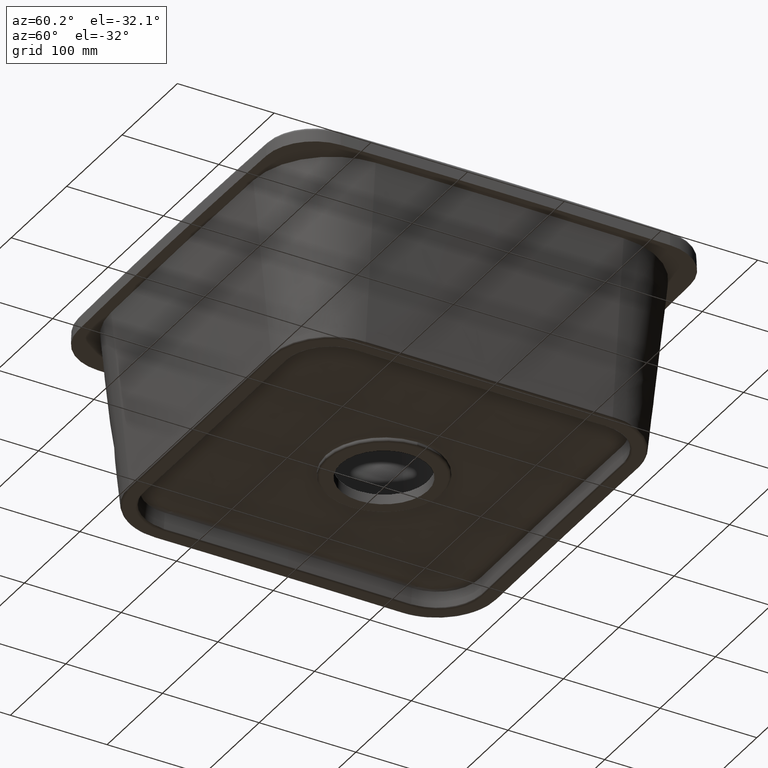
[diagram: clean part render]
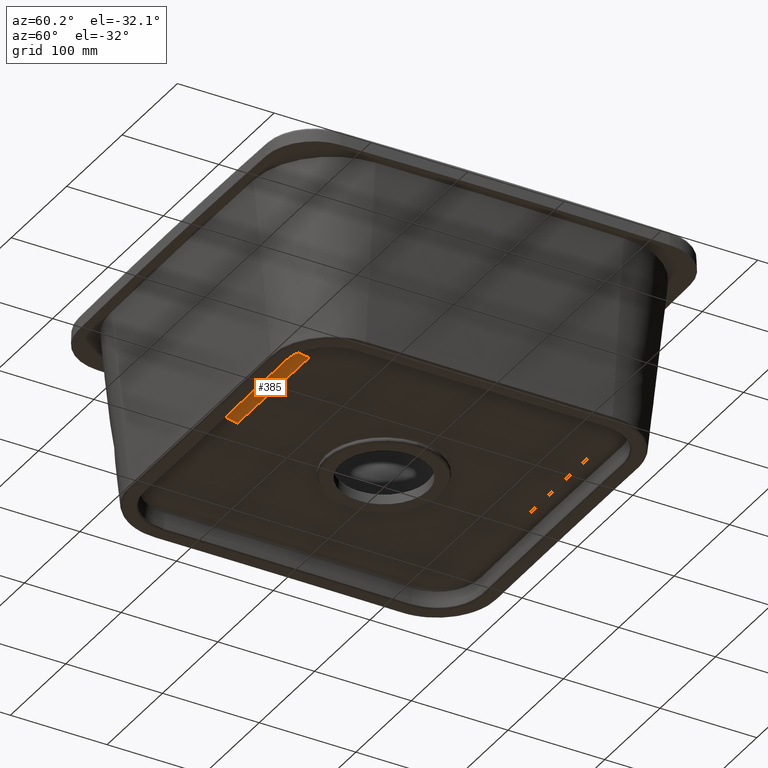
[diagram: same view with one face highlighted and labeled with its STEP entity id]
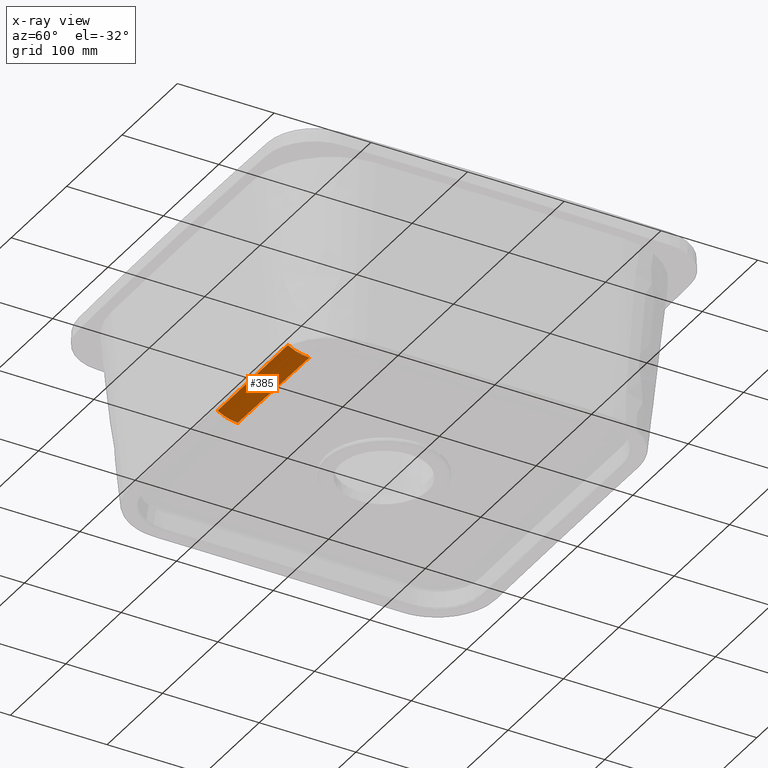
[diagram: x-ray of the same camera — body ghosted, the highlighted face saturated]
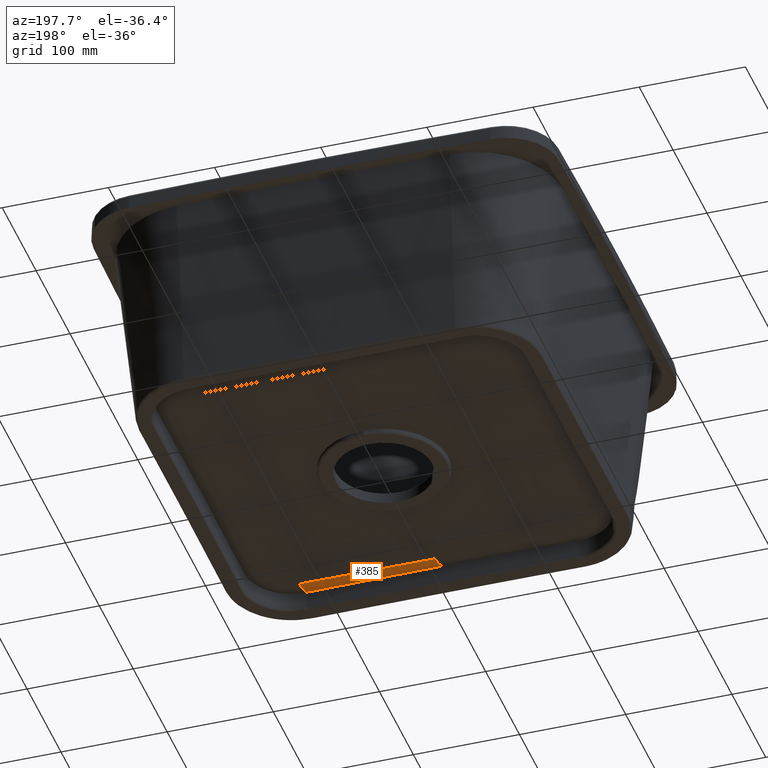
[diagram: same view with one face highlighted and labeled with its STEP entity id]
A machine part, auxiliary view. The second image highlights one B-rep face of the part: STEP entity #385.
The next image is the same camera in x-ray: the body ghosted, the highlighted face saturated — about 0% of this face is hidden behind the body in this view.
A second angle (auxiliary view) of the same face is appended — the face is thin or edge-on in the first view.
In plain terms, the highlighted face is a freeform B-spline surface patch.
Its self-contained STEP definition (entity closure, byte-faithful):
#385=ADVANCED_FACE('',(#663),#587,.T.);
#587=B_SPLINE_SURFACE_WITH_KNOTS('',3,3,((#6813,#6814,#6815,#6816,#6817,
#6818,#6819,#6820,#6821,#6822,#6823,#6824,#6825,#6826,#6827,#6828,#6829,
#6830,#6831,#6832,#6833,#6834,#6835,#6836,#6837),(#6838,#6839,#6840,#6841,
#6842,#6843,#6844,#6845,#6846,#6847,#6848,#6849,#6850,#6851,#6852,#6853,
#6854,#6855,#6856,#6857,#6858,#6859,#6860,#6861,#6862),(#6863,#6864,#6865,
#6866,#6867,#6868,#6869,#6870,#6871,#6872,#6873,#6874,#6875,#6876,#6877,
#6878,#6879,#6880,#6881,#6882,#6883,#6884,#6885,#6886,#6887),(#6888,#6889,
#6890,#6891,#6892,#6893,#6894,#6895,#6896,#6897,#6898,#6899,#6900,#6901,
#6902,#6903,#6904,#6905,#6906,#6907,#6908,#6909,#6910,#6911,#6912),(#6913,
#6914,#6915,#6916,#6917,#6918,#6919,#6920,#6921,#6922,#6923,#6924,#6925,
#6926,#6927,#6928,#6929,#6930,#6931,#6932,#6933,#6934,#6935,#6936,#6937),
(#6938,#6939,#6940,#6941,#6942,#6943,#6944,#6945,#6946,#6947,#6948,#6949,
#6950,#6951,#6952,#6953,#6954,#6955,#6956,#6957,#6958,#6959,#6960,#6961,
#6962),(#6963,#6964,#6965,#6966,#6967,#6968,#6969,#6970,#6971,#6972,#6973,
#6974,#6975,#6976,#6977,#6978,#6979,#6980,#6981,#6982,#6983,#6984,#6985,
#6986,#6987)),.UNSPECIFIED.,.F.,.F.,.F.,(4,3,4),(4,3,3,3,3,3,3,3,4),(0.,
0.5,1.),(0.,0.25,0.5,0.75,0.875,0.9375,0.96875,0.984375,1.),
 .UNSPECIFIED.);
#663=FACE_OUTER_BOUND('',#863,.T.);
#863=EDGE_LOOP('',(#1107,#1108,#1109,#1110,#1111));
#1107=ORIENTED_EDGE('',*,*,#2265,.F.);
#1108=ORIENTED_EDGE('',*,*,#2228,.T.);
#1109=ORIENTED_EDGE('',*,*,#2266,.F.);
#1110=ORIENTED_EDGE('',*,*,#2262,.T.);
#1111=ORIENTED_EDGE('',*,*,#2267,.F.);
#1969=VERTEX_POINT('',#3518);
#1972=VERTEX_POINT('',#3537);
#1997=VERTEX_POINT('',#6400);
#1998=VERTEX_POINT('',#6401);
#1999=VERTEX_POINT('',#6800);
#2228=EDGE_CURVE('',#1969,#1972,#2684,.T.);
#2262=EDGE_CURVE('',#1997,#1998,#2718,.T.);
#2265=EDGE_CURVE('',#1969,#1999,#2721,.T.);
#2266=EDGE_CURVE('',#1997,#1972,#2722,.T.);
#2267=EDGE_CURVE('',#1999,#1998,#2723,.T.);
#2684=B_SPLINE_CURVE_WITH_KNOTS('',3,(#3538,#3539,#3540,#3541),
 .UNSPECIFIED.,.F.,.F.,(4,4),(0.,1.),.UNSPECIFIED.);
#2718=B_SPLINE_CURVE_WITH_KNOTS('',3,(#6394,#6395,#6396,#6397,#6398,#6399),
 .UNSPECIFIED.,.F.,.F.,(4,2,4),(0.,0.5,1.),.UNSPECIFIED.);
#2721=B_SPLINE_CURVE_WITH_KNOTS('',3,(#6783,#6784,#6785,#6786,#6787,#6788,
#6789,#6790,#6791,#6792,#6793,#6794,#6795,#6796,#6797,#6798,#6799),
 .UNSPECIFIED.,.F.,.F.,(4,1,1,1,1,1,1,1,1,1,1,1,1,1,4),(0.,0.124999735793183,
0.187499624926237,0.249999495467291,0.374999188426632,0.499999515627666,
0.562499692375702,0.624999883787122,0.750000211356061,0.875000036920342,
0.937499966207674,0.968749969362104,0.984374981309452,0.992187489668067,
1.),.UNSPECIFIED.);
#2722=B_SPLINE_CURVE_WITH_KNOTS('',3,(#6801,#6802,#6803,#6804,#6805,#6806,
#6807,#6808),.UNSPECIFIED.,.F.,.F.,(4,2,2,4),(0.,0.25,0.5,1.),
 .UNSPECIFIED.);
#2723=B_SPLINE_CURVE_WITH_KNOTS('',3,(#6809,#6810,#6811,#6812),
 .UNSPECIFIED.,.F.,.F.,(4,4),(0.,1.),.UNSPECIFIED.);
#3518=CARTESIAN_POINT('',(3.51410890887579E-12,-172.181683173093,-2.948320013719));
#3537=CARTESIAN_POINT('',(-1.26217744835362E-26,-151.347275727747,-9.50770573471138));
#3538=CARTESIAN_POINT('',(8.58997182554927E-5,-172.181683173093,-2.94832001371975));
#3539=CARTESIAN_POINT('',(5.48332320971472E-5,-165.588697132053,-6.92239311932986));
#3540=CARTESIAN_POINT('',(1.33017617340895E-7,-158.230852352114,-9.0592210068874));
#3541=CARTESIAN_POINT('',(5.92873500410007E-10,-151.347275727747,-9.50770573471138));
#6394=CARTESIAN_POINT('',(127.840346838199,-150.48247812152,-9.53946677384508));
#6395=CARTESIAN_POINT('',(127.824387262593,-154.101442474745,-9.50921636342956));
#6396=CARTESIAN_POINT('',(127.810847625014,-157.880609122432,-9.00550492614753));
#6397=CARTESIAN_POINT('',(127.791583902436,-165.390519101728,-6.89723939566189));
#6398=CARTESIAN_POINT('',(127.785907467725,-169.116323882227,-5.29095508106187));
#6399=CARTESIAN_POINT('',(127.784150592309,-172.603691677709,-3.1678547916441));
#6400=CARTESIAN_POINT('',(127.840346838199,-150.482477022057,-9.53946677384514));
#6401=CARTESIAN_POINT('',(127.784163661064,-172.603691551223,-3.16785287330329));
#6783=CARTESIAN_POINT('',(8.5963599320307E-5,-172.181683173093,-2.94832001371938));
#6784=CARTESIAN_POINT('',(5.32352291777929,-172.182495415009,-2.94518963214221));
#6785=CARTESIAN_POINT('',(13.3086792534589,-172.18371377802,-2.94049405924463));
#6786=CARTESIAN_POINT('',(23.955533516113,-172.192273650997,-2.92037755945526));
#6787=CARTESIAN_POINT('',(34.6023829056648,-172.204868312448,-2.90276092307116));
#6788=CARTESIAN_POINT('',(47.9109974829944,-172.230179606328,-2.89646031823095));
#6789=CARTESIAN_POINT('',(61.2195198276852,-172.271329574305,-2.9424739634533));
#6790=CARTESIAN_POINT('',(71.8661954354625,-172.312941912933,-3.00255459003592));
#6791=CARTESIAN_POINT('',(82.5128196468725,-172.359262687509,-3.0678765946508));
#6792=CARTESIAN_POINT('',(95.8211112452336,-172.424018160363,-3.14050821774379));
#6793=CARTESIAN_POINT('',(109.129536717854,-172.49476920374,-3.17114278087235));
#6794=CARTESIAN_POINT('',(118.445410718071,-172.547776716356,-3.17366471439157));
#6795=CARTESIAN_POINT('',(123.103343957177,-172.575298386741,-3.17161607350973));
#6796=CARTESIAN_POINT('',(125.432310639378,-172.589332233662,-3.16990856872695));
#6797=CARTESIAN_POINT('',(126.763148893431,-172.59743092027,-3.16880105178944));
#6798=CARTESIAN_POINT('',(127.428567890326,-172.601512384869,-3.16816188807049));
#6799=CARTESIAN_POINT('',(127.761277430792,-172.603553117426,-3.16784230617064));
#6800=CARTESIAN_POINT('',(127.761278794802,-172.603553125999,-3.16784230663001));
#6801=CARTESIAN_POINT('',(127.840346838199,-150.48247812152,-9.53946677384508));
#6802=CARTESIAN_POINT('',(117.145194530397,-150.5639794336,-9.53882777496722));
#6803=CARTESIAN_POINT('',(106.533119263018,-150.600740517778,-9.53864526681426));
#6804=CARTESIAN_POINT('',(85.2264260280871,-150.876948799833,-9.53169530429758));
#6805=CARTESIAN_POINT('',(74.5737931422902,-151.083191663746,-9.52326829313834));
#6806=CARTESIAN_POINT('',(42.6141632141493,-151.505985311301,-9.49915193072025));
#6807=CARTESIAN_POINT('',(21.3068325294983,-151.347274497122,-9.50770581489014));
#6808=CARTESIAN_POINT('',(5.92876336115533E-10,-151.347275727747,-9.50770573471138));
#6809=CARTESIAN_POINT('',(127.76127970418,-172.603553131714,-3.16784230693626));
#6810=CARTESIAN_POINT('',(127.768903624587,-172.603601218878,-3.16784646850554));
#6811=CARTESIAN_POINT('',(127.776527253996,-172.603647400798,-3.16785063007482));
#6812=CARTESIAN_POINT('',(127.78415059231,-172.603691677709,-3.1678547916441));
#6813=CARTESIAN_POINT('',(8.97155417211056E-5,-173.013530193725,-2.43506262702022));
#6814=CARTESIAN_POINT('',(10.6687222744401,-173.01347103375,-2.43502582220219));
#6815=CARTESIAN_POINT('',(21.3321407643944,-173.032545343108,-2.39966627359423));
#6816=CARTESIAN_POINT('',(31.9656241331393,-173.039109213434,-2.39108703580777));
#6817=CARTESIAN_POINT('',(42.5991075018841,-173.04567308376,-2.38250779802132));
#6818=CARTESIAN_POINT('',(53.1987232925424,-173.029515178704,-2.42121443479202));
#6819=CARTESIAN_POINT('',(63.8226747613487,-172.978539874759,-2.52985519399385));
#6820=CARTESIAN_POINT('',(74.4466262301549,-172.927564570814,-2.63849595319567));
#6821=CARTESIAN_POINT('',(85.1072325915507,-172.852432766086,-2.79538428815797));
#6822=CARTESIAN_POINT('',(95.7849671563088,-172.805333057636,-2.89921441262504));
#6823=CARTESIAN_POINT('',(101.123834438688,-172.78178320341,-2.95112947485858));
#6824=CARTESIAN_POINT('',(106.464246744959,-172.764343635931,-2.99166230691372));
#6825=CARTESIAN_POINT('',(111.802474590753,-172.752432797883,-3.02212415924955));
#6826=CARTESIAN_POINT('',(114.471588513649,-172.746477378858,-3.03735508541746));
#6827=CARTESIAN_POINT('',(117.139370757589,-172.741823747533,-3.05021545395434));
#6828=CARTESIAN_POINT('',(119.806340955295,-172.738099101338,-3.0614516307717));
#6829=CARTESIAN_POINT('',(121.139826054148,-172.73623677824,-3.06706971918039));
#6830=CARTESIAN_POINT('',(122.473078235394,-172.734599544981,-3.07229063092381));
#6831=CARTESIAN_POINT('',(123.806001292885,-172.733120749994,-3.07721571488417));
#6832=CARTESIAN_POINT('',(124.47246282163,-172.7323813525,-3.07967825686435));
#6833=CARTESIAN_POINT('',(125.138758984188,-172.731693001534,-3.08206314477625));
#6834=CARTESIAN_POINT('',(125.805073493385,-172.731046244346,-3.08439029764825));
#6835=CARTESIAN_POINT('',(126.471388002581,-172.730399487159,-3.08671745052025));
#6836=CARTESIAN_POINT('',(127.169312165708,-172.730593372011,-3.08765436703005));
#6837=CARTESIAN_POINT('',(127.784088973151,-172.729134343645,-3.09120436453924));
#6838=CARTESIAN_POINT('',(7.45634164642187E-5,-169.613342164391,-4.58200582911422));
#6839=CARTESIAN_POINT('',(10.6691308700814,-169.613283514786,-4.58197816153749));
#6840=CARTESIAN_POINT('',(21.3327859360463,-169.636867847515,-4.54675625671045));
#6841=CARTESIAN_POINT('',(31.9661528753996,-169.64410653333,-4.53831924806025));
#6842=CARTESIAN_POINT('',(42.599519814753,-169.651345219144,-4.52988223941006));
#6843=CARTESIAN_POINT('',(53.199042087417,-169.629350429231,-4.56866722915306));
#6844=CARTESIAN_POINT('',(63.8226068900403,-169.562682043202,-4.67726007524362));
#6845=CARTESIAN_POINT('',(74.4461716926635,-169.496013657173,-4.78585292133419));
#6846=CARTESIAN_POINT('',(85.1068482984486,-169.398063594109,-4.94264875067626));
#6847=CARTESIAN_POINT('',(95.7851522867906,-169.33498452681,-5.04657395887249));
#6848=CARTESIAN_POINT('',(101.124304280962,-169.30344499316,-5.0985365629706));
#6849=CARTESIAN_POINT('',(106.464889410192,-169.279499643204,-5.13915375448139));
#6850=CARTESIAN_POINT('',(111.803275328329,-169.262428180966,-5.16973628228545));
#6851=CARTESIAN_POINT('',(114.472468287398,-169.253892449846,-5.18502754618747));
#6852=CARTESIAN_POINT('',(117.140368056428,-169.246973717586,-5.19795693503243));
#6853=CARTESIAN_POINT('',(119.807424646216,-169.241197404325,-5.209269292459));
#6854=CARTESIAN_POINT('',(121.14095294111,-169.238309247694,-5.21492547117229));
#6855=CARTESIAN_POINT('',(122.474258381446,-169.235698070517,-5.2201862122284));
#6856=CARTESIAN_POINT('',(123.807222106224,-169.233281687409,-5.2251519156847));
#6857=CARTESIAN_POINT('',(124.473703968613,-169.232073495855,-5.22763476741284));
#6858=CARTESIAN_POINT('',(125.140020930157,-169.230926891186,-5.23004062241083));
#6859=CARTESIAN_POINT('',(125.80635455622,-169.229829656447,-5.23238937158292));
#6860=CARTESIAN_POINT('',(126.472688182282,-169.228732421709,-5.234738120755));
#6861=CARTESIAN_POINT('',(127.170043175156,-169.228681275133,-5.23573417320648));
#6862=CARTESIAN_POINT('',(127.785765426697,-169.226584520661,-5.23926811042872));
#6863=CARTESIAN_POINT('',(5.22822060796975E-5,-165.985289943605,-6.25592514347928));
#6864=CARTESIAN_POINT('',(10.6682705798025,-165.985235915011,-6.25590750805446));
#6865=CARTESIAN_POINT('',(21.3313250795341,-166.014098115101,-6.22317333163835));
#6866=CARTESIAN_POINT('',(31.9661025353058,-166.022188348947,-6.21534446961138));
#6867=CARTESIAN_POINT('',(42.6008799910775,-166.030278582792,-6.20751560758442));
#6868=CARTESIAN_POINT('',(53.2043716645523,-166.001641232084,-6.24361801051184));
#6869=CARTESIAN_POINT('',(63.8298705512419,-165.916830374334,-6.34447716213987));
#6870=CARTESIAN_POINT('',(74.4553694379314,-165.832019516583,-6.44533631376791));
#6871=CARTESIAN_POINT('',(85.1155438094736,-165.707490986256,-6.59077655388976));
#6872=CARTESIAN_POINT('',(95.7924208296867,-165.625811820292,-6.68703945215546));
#6873=CARTESIAN_POINT('',(101.130859339793,-165.58497223731,-6.7351709012883));
#6874=CARTESIAN_POINT('',(106.470537418505,-165.553474040802,-6.77276115917558));
#6875=CARTESIAN_POINT('',(111.808172366218,-165.530453985671,-6.80105104764384));
#6876=CARTESIAN_POINT('',(114.476989840074,-165.518943958105,-6.81519599187797));
#6877=CARTESIAN_POINT('',(117.144639579781,-165.509426826058,-6.82715154866869));
#6878=CARTESIAN_POINT('',(119.811485846843,-165.50130785744,-6.83760894744305));
#6879=CARTESIAN_POINT('',(121.144908980374,-165.49724837313,-6.84283764683024));
#6880=CARTESIAN_POINT('',(122.478133599735,-165.493528124643,-6.8476998768396));
#6881=CARTESIAN_POINT('',(123.811032302105,-165.490047174177,-6.85228808194395));
#6882=CARTESIAN_POINT('',(124.47748165329,-165.488306698944,-6.85458218449612));
#6883=CARTESIAN_POINT('',(125.143778680961,-165.486640260377,-6.85680520187775));
#6884=CARTESIAN_POINT('',(125.810089987733,-165.485032319895,-6.8589755339674));
#6885=CARTESIAN_POINT('',(126.476401294505,-165.483424379414,-6.86114586605704));
#6886=CARTESIAN_POINT('',(127.170561050944,-165.483101294441,-6.86208202354614));
#6887=CARTESIAN_POINT('',(127.791399153342,-165.480280985596,-6.8653364557576));
#6888=CARTESIAN_POINT('',(3.35242907530995E-5,-162.314721732483,-7.42850699569342));
#6889=CARTESIAN_POINT('',(10.6657378427421,-162.314677005399,-7.42849669302719));
#6890=CARTESIAN_POINT('',(21.3271241377858,-162.348376703509,-7.40117099895119));
#6891=CARTESIAN_POINT('',(31.9652071491116,-162.357284142626,-7.39462529828735));
#6892=CARTESIAN_POINT('',(42.6032901604375,-162.366191581742,-7.3880795976235));
#6893=CARTESIAN_POINT('',(53.2157312741288,-162.331545606135,-7.41832525965484));
#6894=CARTESIAN_POINT('',(63.8461199512392,-162.230260047728,-7.50226128952428));
#6895=CARTESIAN_POINT('',(74.4765086283496,-162.128974489321,-7.58619731939371));
#6896=CARTESIAN_POINT('',(85.1354968137453,-161.980317970462,-7.70664645099318));
#6897=CARTESIAN_POINT('',(95.8083433528606,-161.8818582685,-7.78595043103497));
#6898=CARTESIAN_POINT('',(101.144766622418,-161.832628417519,-7.82560242105587));
#6899=CARTESIAN_POINT('',(106.482162466634,-161.794346133809,-7.85648027849958));
#6900=CARTESIAN_POINT('',(111.81787965491,-161.766016609144,-7.87968722125571));
#6901=CARTESIAN_POINT('',(114.485738249048,-161.751851846812,-7.89129069263378));
#6902=CARTESIAN_POINT('',(117.152652406741,-161.740025814504,-7.90108727743065));
#6903=CARTESIAN_POINT('',(119.818897556638,-161.729833305936,-7.90964977183614));
#6904=CARTESIAN_POINT('',(121.152020131587,-161.724737051652,-7.91393101903889));
#6905=CARTESIAN_POINT('',(122.484984192283,-161.720037472226,-7.91791023838578));
#6906=CARTESIAN_POINT('',(123.817675567781,-161.71561847008,-7.92166340441653));
#6907=CARTESIAN_POINT('',(124.48402125553,-161.713408969007,-7.92353998743191));
#6908=CARTESIAN_POINT('',(125.150242015595,-161.711284941746,-7.92535814771467));
#6909=CARTESIAN_POINT('',(125.816474367697,-161.709227813055,-7.9271329844074));
#6910=CARTESIAN_POINT('',(126.482706719799,-161.707170684364,-7.92890782110013));
#6911=CARTESIAN_POINT('',(127.171228279046,-161.706629969886,-7.92967360533661));
#6912=CARTESIAN_POINT('',(127.8010428017,-161.703150158336,-7.93233921829053));
#6913=CARTESIAN_POINT('',(1.47663754265015E-5,-158.644153521361,-8.60108884790756));
#6914=CARTESIAN_POINT('',(10.6632051056816,-158.644118095786,-8.60108587799992));
#6915=CARTESIAN_POINT('',(21.3229231960375,-158.682655291917,-8.57916866626404));
#6916=CARTESIAN_POINT('',(31.9643117629175,-158.692379936304,-8.57390612696331));
#6917=CARTESIAN_POINT('',(42.6057003297975,-158.702104580692,-8.56864358766259));
#6918=CARTESIAN_POINT('',(53.2270908837052,-158.661449980186,-8.59303250879785));
#6919=CARTESIAN_POINT('',(63.8623693512365,-158.543689721122,-8.66004541690868));
#6920=CARTESIAN_POINT('',(74.4976478187678,-158.425929462058,-8.72705832501951));
#6921=CARTESIAN_POINT('',(85.1554498180171,-158.253144954669,-8.8225163480966));
#6922=CARTESIAN_POINT('',(95.8242658760345,-158.137904716709,-8.88486140991449));
#6923=CARTESIAN_POINT('',(101.158673905043,-158.080284597728,-8.91603394082344));
#6924=CARTESIAN_POINT('',(106.493787514762,-158.035218226816,-8.94019939782358));
#6925=CARTESIAN_POINT('',(111.827586943602,-158.001579232617,-8.95832339486759));
#6926=CARTESIAN_POINT('',(114.494486658022,-157.984759735518,-8.9673853933896));
#6927=CARTESIAN_POINT('',(117.160665233702,-157.97062480295,-8.97502300619261));
#6928=CARTESIAN_POINT('',(119.826309266434,-157.958358754432,-8.98169059622923));
#6929=CARTESIAN_POINT('',(121.1591312828,-157.952225730174,-8.98502439124754));
#6930=CARTESIAN_POINT('',(122.49183478483,-157.946546819808,-8.98812059993196));
#6931=CARTESIAN_POINT('',(123.824318833457,-157.941189765983,-8.99103872688912));
#6932=CARTESIAN_POINT('',(124.490560857771,-157.93851123907,-8.9924977903677));
#6933=CARTESIAN_POINT('',(125.156705350229,-157.935929623115,-8.99391109355158));
#6934=CARTESIAN_POINT('',(125.822858747661,-157.933423306214,-8.99529043484741));
#6935=CARTESIAN_POINT('',(126.489012145093,-157.930916989314,-8.99666977614322));
#6936=CARTESIAN_POINT('',(127.171895507147,-157.93015864533,-8.99726518712708));
#6937=CARTESIAN_POINT('',(127.810686450057,-157.926019331076,-8.99934198082347));
#6938=CARTESIAN_POINT('',(6.96043169183617E-8,-154.934562702588,-9.27398371629976));
#6939=CARTESIAN_POINT('',(10.6590032881748,-154.93454119602,-9.27398511816684));
#6940=CARTESIAN_POINT('',(21.3159893518421,-154.977403108599,-9.26039788864946));
#6941=CARTESIAN_POINT('',(31.9625724920553,-154.987892467889,-9.25709822849173));
#6942=CARTESIAN_POINT('',(42.6091556322685,-154.99838182718,-9.25379856833401));
#6943=CARTESIAN_POINT('',(53.2444590348122,-154.952416773478,-9.26916895418238));
#6944=CARTESIAN_POINT('',(63.8875748119227,-154.82007493048,-9.3100813561764));
#6945=CARTESIAN_POINT('',(74.5306905890333,-154.687733087482,-9.35099375817042));
#6946=CARTESIAN_POINT('',(85.186625237737,-154.493648346564,-9.40783015141758));
#6947=CARTESIAN_POINT('',(95.8488130968566,-154.363728830897,-9.44392673248215));
#6948=CARTESIAN_POINT('',(101.179907026416,-154.298769073064,-9.46197502301444));
#6949=CARTESIAN_POINT('',(106.511366701605,-154.247802623862,-9.47574747926597));
#6950=CARTESIAN_POINT('',(111.842084138168,-154.209579812598,-9.48600626371133));
#6951=CARTESIAN_POINT('',(114.507442856449,-154.190468406965,-9.49113565593401));
#6952=CARTESIAN_POINT('',(117.172401294038,-154.174350650967,-9.49543391049157));
#6953=CARTESIAN_POINT('',(119.837054146368,-154.160311903133,-9.49917204145429));
#6954=CARTESIAN_POINT('',(121.169380572533,-154.153292529216,-9.50104110693565));
#6955=CARTESIAN_POINT('',(122.501644128349,-154.146778722678,-9.5027726687959));
#6956=CARTESIAN_POINT('',(123.833778753389,-154.140623894776,-9.50440122748752));
#6957=CARTESIAN_POINT('',(124.499846065908,-154.137546480826,-9.50521550683334));
#6958=CARTESIAN_POINT('',(125.165858020042,-154.134576174494,-9.50600346524603));
#6959=CARTESIAN_POINT('',(125.831875898319,-154.13168867933,-9.50677179199878));
#6960=CARTESIAN_POINT('',(126.497893776596,-154.128801184166,-9.50754011875152));
#6961=CARTESIAN_POINT('',(127.172749972245,-154.127883964009,-9.50785918942011));
#6962=CARTESIAN_POINT('',(127.824291505139,-154.123156260865,-9.50903486096707));
#6963=CARTESIAN_POINT('',(5.92873500410007E-10,-151.347275727747,-9.50770573471138));
#6964=CARTESIAN_POINT('',(10.6533573067724,-151.347275109069,-9.50770577502007));
#6965=CARTESIAN_POINT('',(21.306714558289,-151.392661394834,-9.50468462020526));
#6966=CARTESIAN_POINT('',(31.9600717869425,-151.403557352409,-9.50393415820031));
#6967=CARTESIAN_POINT('',(42.613429015596,-151.414453309983,-9.50318369619537));
#6968=CARTESIAN_POINT('',(53.2667861608114,-151.365205658028,-9.50718065791552));
#6969=CARTESIAN_POINT('',(63.9201431021827,-151.224275327409,-9.51522080931715));
#6970=CARTESIAN_POINT('',(74.5735000435539,-151.083344996791,-9.52326096071879));
#6971=CARTESIAN_POINT('',(85.2268572532924,-150.877091155865,-9.53169041296553));
#6972=CARTESIAN_POINT('',(95.8802148802634,-150.738989167648,-9.53516664874541));
#6973=CARTESIAN_POINT('',(101.206893693749,-150.669938173539,-9.53690476663535));
#6974=CARTESIAN_POINT('',(106.533572407544,-150.615712785799,-9.53782586918413));
#6975=CARTESIAN_POINT('',(111.860250967036,-150.574950600637,-9.53841352448363));
#6976=CARTESIAN_POINT('',(114.523590246782,-150.554569508056,-9.53870735213338));
#6977=CARTESIAN_POINT('',(117.186928678682,-150.537352024125,-9.53891666560334));
#6978=CARTESIAN_POINT('',(119.850268044517,-150.522326285135,-9.53908160167613));
#6979=CARTESIAN_POINT('',(121.181937727434,-150.514813415641,-9.53916406971253));
#6980=CARTESIAN_POINT('',(122.513613011901,-150.507833939902,-9.53923521551001));
#6981=CARTESIAN_POINT('',(123.845279600431,-150.501232817078,-9.53929833492225));
#6982=CARTESIAN_POINT('',(124.511112894696,-150.497932255666,-9.53932989462837));
#6983=CARTESIAN_POINT('',(125.17694481082,-150.494744441927,-9.53935941215518));
#6984=CARTESIAN_POINT('',(125.8427796418,-150.491643606055,-9.53938730128108));
#6985=CARTESIAN_POINT('',(126.508614472781,-150.488542770184,-9.53941519040698));
#6986=CARTESIAN_POINT('',(127.174353724207,-150.487565867302,-9.53942687759291));
#6987=CARTESIAN_POINT('',(127.840346838199,-150.48247812152,-9.53946677384508));